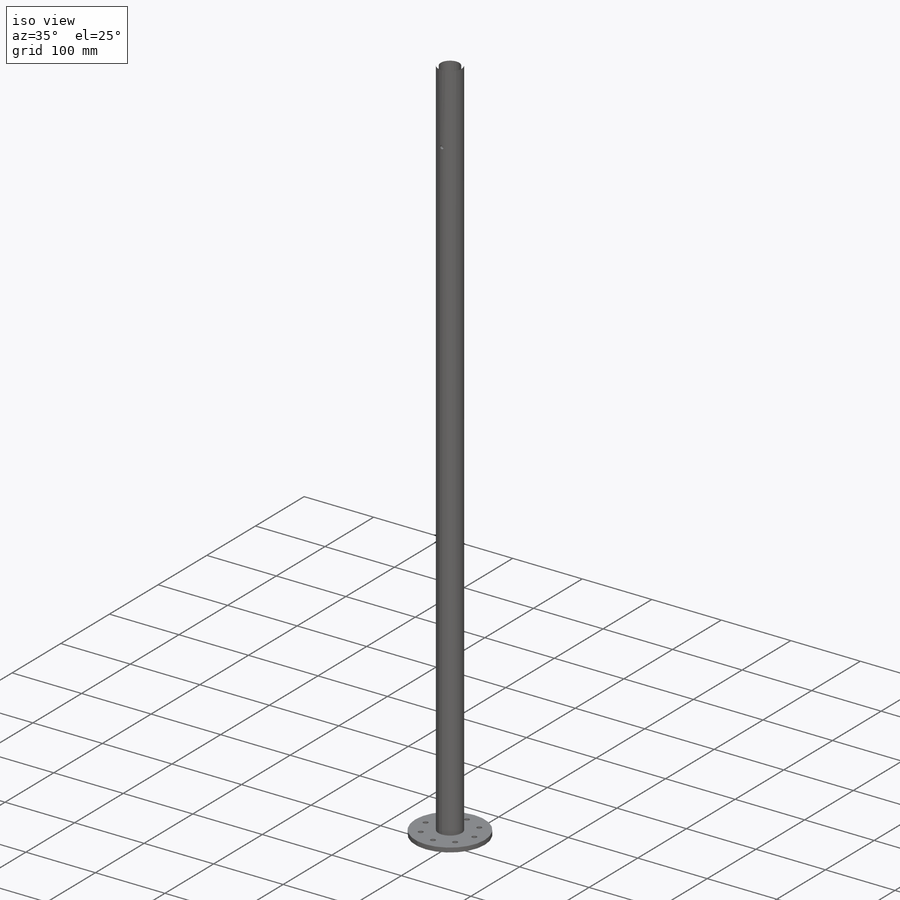
[diagram: iso view]
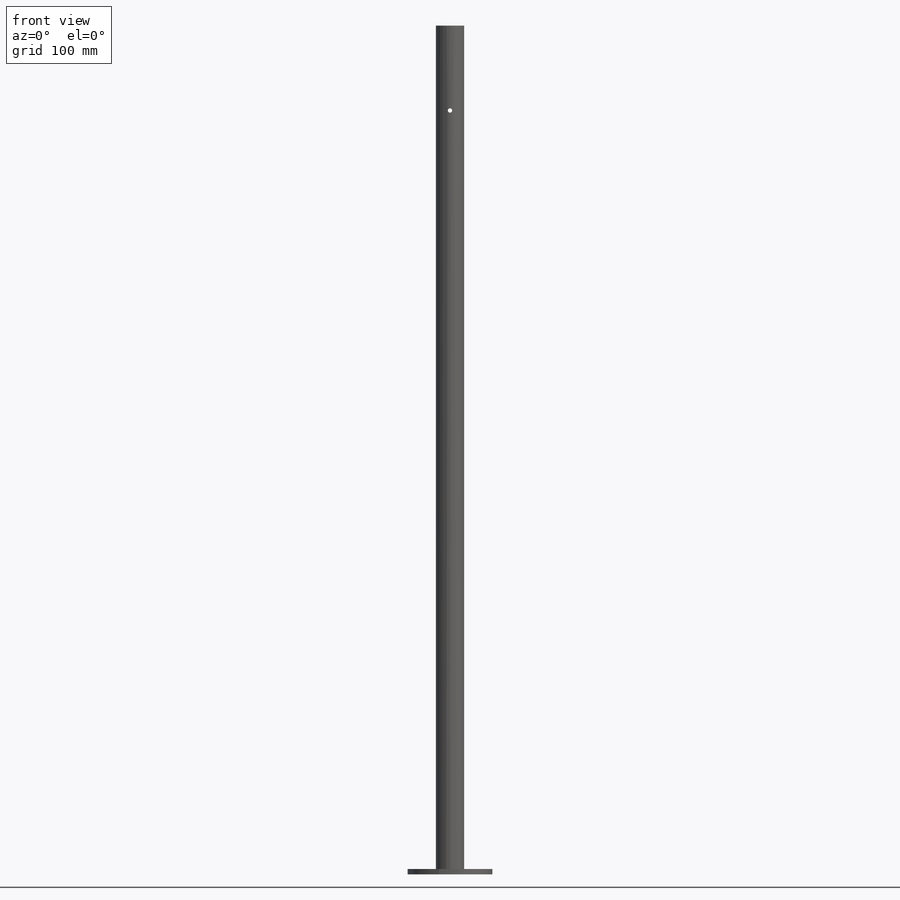
[diagram: front view]
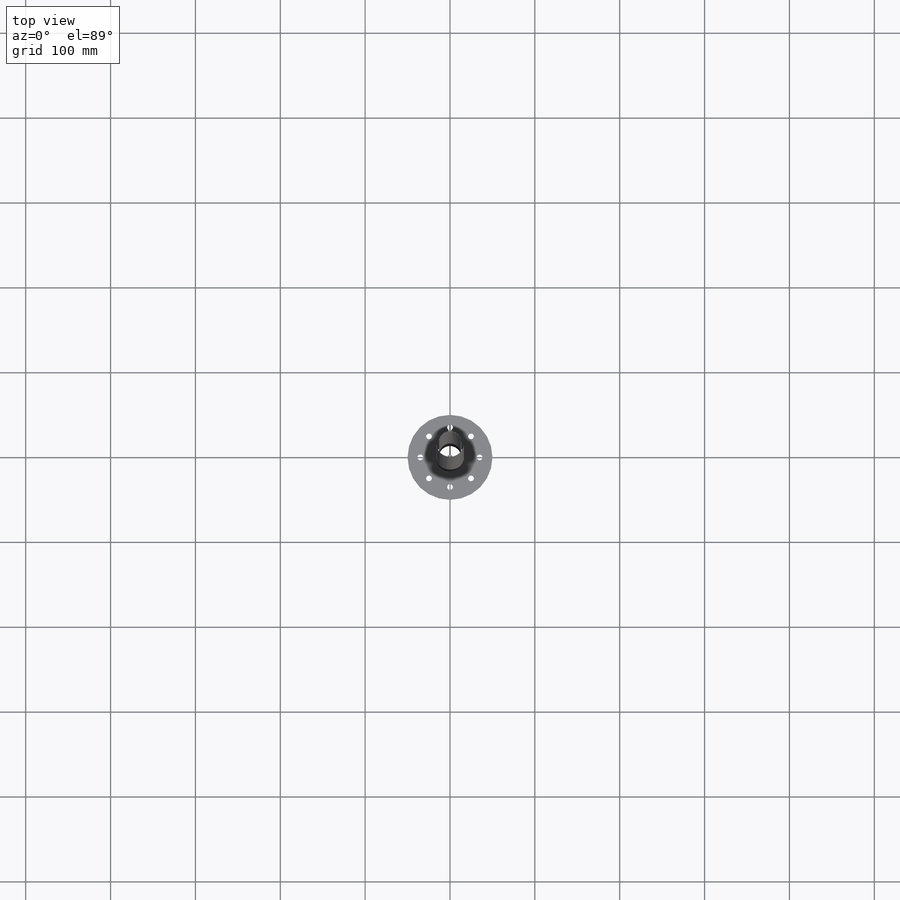
[diagram: top view]
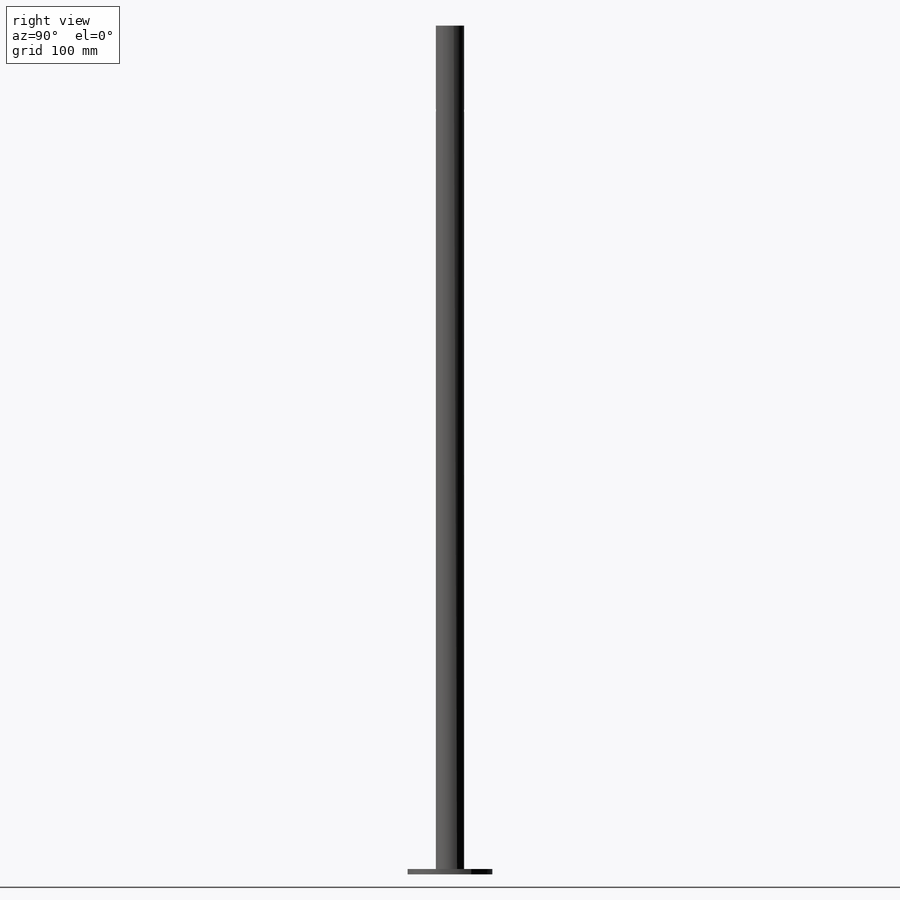
[diagram: right view]
SOLIDWORKS PART (.sldprt)
format: sldprt  version: not decoded by parser v0  size: 407,552 bytes
history: native  units: mm
features: sketch x11, hole x3, extrude x2, material x1, cut_extrude x1, helix x1 (+12 scaffold rows collapsed)
feature tree (31):
  scaffold x12  (default folders/planes/origin — collapsed)
  material  "AISI 316 Annealed Stainless Steel Bar (SS)"
  sketch  "Sketch1"  dims[D1=33.4mm D2=3.38mm]
  extrude  "Boss-Extrude1"  Depth=1000mm
  sketch  "Sketch2"  dims[D1=25.0mm D2=19.0mm]
  cut_extrude  "Cut-Extrude1"  Depth=300mm
  sketch  "3DSketch1"  dims[D1=25.0mm]
  helix  "Helix/Spiral1"  Pitch=177.5mm
  hole  "#8 (0.199) Diameter Hole4"  Diameter=5.0546mm Depth=40mm
  sketch  "3DSketch8"  dims[c1.D1=178.5827mm c2.D1=178.5827mm c3.D1=178.5827mm c4.D1=178.5827mm c5.D1=178.5827mm c6.D1=~34.575285mm c6.D2=30.0mm c7.D1=~28.114606mm c7.D2=30.0mm]
  sketch  "Sketch12"  dims[hole-wizard template sketch: 47 standard entries collapsed; hole parameters kept: c15.Hole Depth=40.0mm c15.D3=~14.816244mm c15.Drill Angle=180.0deg c15.D1=9.0 c16.D3=50.0mm c16.D2=1.0 c16.D4=50.0mm]
  sketch  "Sketch13"  dims[D1=100.0mm D2=33.4mm]
  extrude  "Boss-Extrude2"  Depth=6.35mm
  sketch  "Sketch18"  dims[D1=45.0deg D2=90.0deg]
  hole  "1/4 Clearance Hole1"  Diameter=6.7564mm Depth=50mm
  sketch  "Sketch15"  dims[D1=35.0mm D2=35.0mm D3=35.0mm D4=35.0mm D5=35.0mm D6=35.0mm D7=35.0mm D8=35.0mm]
  sketch  "Sketch14"  dims[hole-wizard template sketch: 47 standard entries collapsed; hole parameters kept: c15.Hole Depth=50.0mm c15.D3=~14.816244mm c15.Drill Angle=180.0deg]
  hole  "#8 (0.199) Diameter Hole6"  Diameter=5.0546mm Depth=50mm
  sketch  "3DSketch9"  dims[D1=100.0mm]
  sketch  "Sketch17"  dims[hole-wizard template sketch: 47 standard entries collapsed; hole parameters kept: c15.Hole Depth=50.0mm c15.D3=~14.816244mm c15.Drill Angle=180.0deg]
decode coverage: 18 of 18 modeling features carry decoded parameters
note: ~ marks probable driven/reference dimensions
note: suppression state not decoded; provenance and decode notes live in map.json
